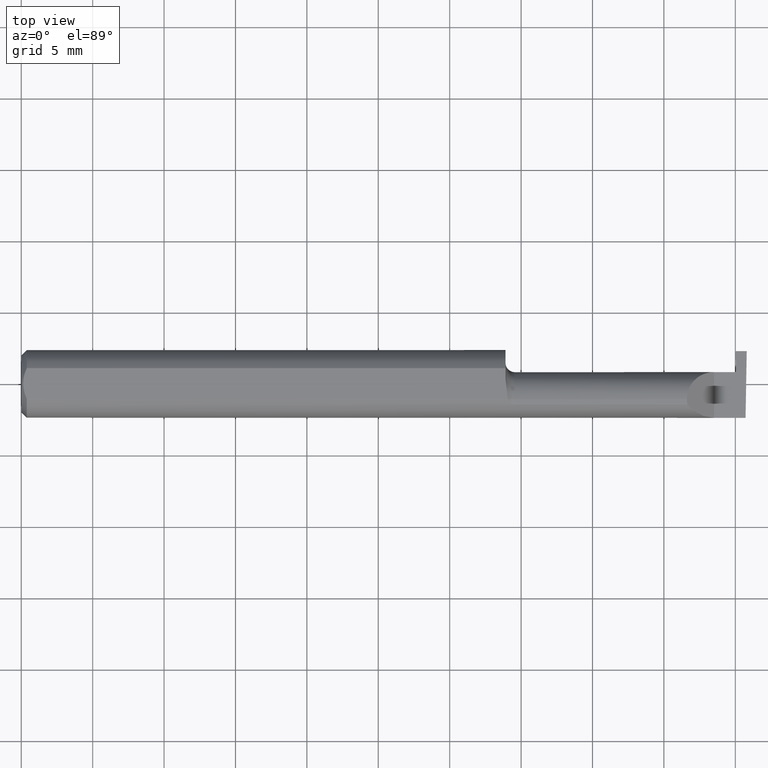
[diagram: clean part render]
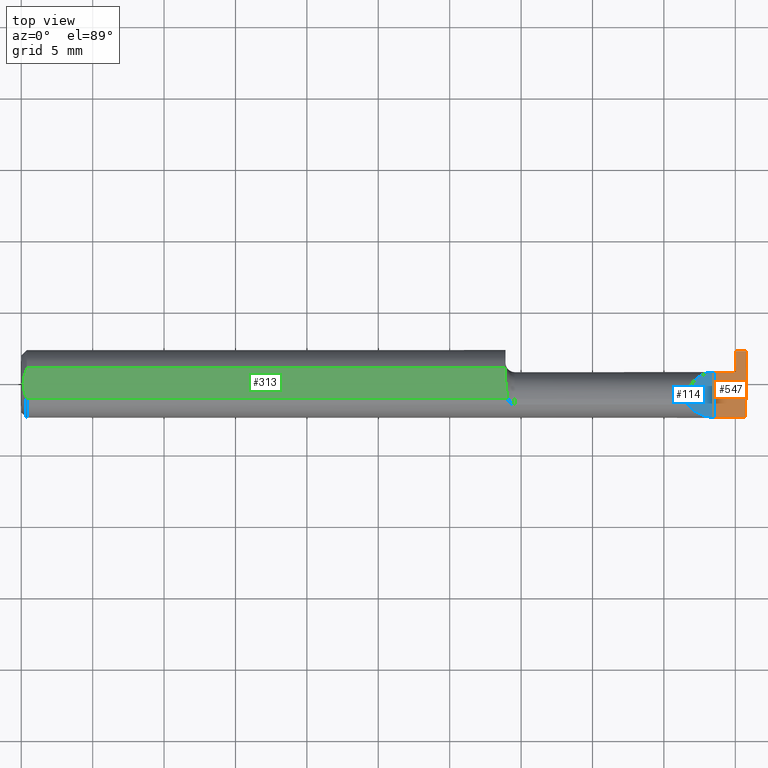
[diagram: same view with three faces highlighted in distinct colors, each labeled with its STEP entity id]
A machine part, top view with three faces highlighted in distinct colors.
Their STEP definitions:

[orange] entity #547 — the highlighted planar face has unit normal (-0, 0, -1).
#7 = EDGE_CURVE ( 'NONE', #507, #112, #250, .T. ) ;
#18 = VECTOR ( 'NONE', #140, 39.37007874015748143 ) ;
#37 = DIRECTION ( 'NONE',  ( 0.01742050049977865098, -0.9998482515673751125, -2.130797594925076716E-18 ) ) ;
#39 = VECTOR ( 'NONE', #649, 39.37007874015748143 ) ;
#65 = CARTESIAN_POINT ( 'NONE',  ( 1.996678706298551820, -0.09994204647866641866, 4.067411700506801675E-19 ) ) ;
#88 = VECTOR ( 'NONE', #717, 39.37007874015748854 ) ;
#96 = VECTOR ( 'NONE', #226, 39.37007874015748143 ) ;
#112 = VERTEX_POINT ( 'NONE', #553 ) ;
#134 = EDGE_CURVE ( 'NONE', #716, #653, #562, .T. ) ;
#140 = DIRECTION ( 'NONE',  ( -0.000000000000000000, 1.000000000000000000, -0.000000000000000000 ) ) ;
#155 = LINE ( 'NONE', #215, #417 ) ;
#172 = FACE_OUTER_BOUND ( 'NONE', #288, .T. ) ;
#173 = EDGE_CURVE ( 'NONE', #716, #539, #155, .T. ) ;
#181 = CARTESIAN_POINT ( 'NONE',  ( 1.970510542377208685, 0.03240000000000000518, 1.887975845471880136E-17 ) ) ;
#182 = LINE ( 'NONE', #704, #39 ) ;
#184 = CARTESIAN_POINT ( 'NONE',  ( 1.996789369178486595, -0.09359999999634724399, 1.727064904157919157E-17 ) ) ;
#205 = VECTOR ( 'NONE', #37, 39.37007874015748854 ) ;
#215 = CARTESIAN_POINT ( 'NONE',  ( 1.899999999999999911, 0.09040000000000000813, -3.918869757271545852E-19 ) ) ;
#221 = ORIENTED_EDGE ( 'NONE', *, *, #327, .F. ) ;
#226 = DIRECTION ( 'NONE',  ( -1.000000000000000000, -7.220189035068029059E-16, 1.224646799147358877E-16 ) ) ;
#230 = LINE ( 'NONE', #289, #96 ) ;
#250 = LINE ( 'NONE', #544, #579 ) ;
#254 = DIRECTION ( 'NONE',  ( -1.000000000000000000, -0.000000000000000000, -0.000000000000000000 ) ) ;
#256 = LINE ( 'NONE', #431, #18 ) ;
#288 = EDGE_LOOP ( 'NONE', ( #633, #769, #484, #418, #381, #221, #400 ) ) ;
#289 = CARTESIAN_POINT ( 'NONE',  ( 2.000000000000000000, 0.03240000000000002600, 1.170704816173023527E-32 ) ) ;
#296 = DIRECTION ( 'NONE',  ( -1.224646799147358877E-16, 0.000000000000000000, -1.000000000000000000 ) ) ;
#299 = CARTESIAN_POINT ( 'NONE',  ( 2.000000000000000000, -0.1000000000000000056, 0.000000000000000000 ) ) ;
#307 = LINE ( 'NONE', #65, #88 ) ;
#327 = EDGE_CURVE ( 'NONE', #698, #407, #182, .T. ) ;
#344 = CARTESIAN_POINT ( 'NONE',  ( 1.972825615918400111, -0.1004734632187760518, 3.327902248433222370E-18 ) ) ;
#369 = CARTESIAN_POINT ( 'NONE',  ( 2.000000000000000444, 0.09040000000000000813, -4.722041942173579765E-17 ) ) ;
#372 = CARTESIAN_POINT ( 'NONE',  ( 1.969499999999999806, 0.09040000000000000813, -3.918869757271545852E-19 ) ) ;
#379 = CARTESIAN_POINT ( 'NONE',  ( 1.910000000000000142, 0.03240000000000002600, 1.102182119232621301E-17 ) ) ;
#381 = ORIENTED_EDGE ( 'NONE', *, *, #451, .T. ) ;
#400 = ORIENTED_EDGE ( 'NONE', *, *, #774, .F. ) ;
#407 = VERTEX_POINT ( 'NONE', #581 ) ;
#417 = VECTOR ( 'NONE', #616, 39.37007874015748143 ) ;
#418 = ORIENTED_EDGE ( 'NONE', *, *, #134, .T. ) ;
#431 = CARTESIAN_POINT ( 'NONE',  ( 1.910000000000000142, -0.1000000000000000056, 1.102182119232621301E-17 ) ) ;
#451 = EDGE_CURVE ( 'NONE', #653, #407, #230, .T. ) ;
#484 = ORIENTED_EDGE ( 'NONE', *, *, #173, .F. ) ;
#507 = VERTEX_POINT ( 'NONE', #184 ) ;
#539 = VERTEX_POINT ( 'NONE', #369 ) ;
#544 = CARTESIAN_POINT ( 'NONE',  ( 2.999519565323743132E-32, -0.09359999999999998876, 2.449293598294717754E-16 ) ) ;
#547 = ADVANCED_FACE ( 'NONE', ( #172 ), #722, .F. ) ;
#553 = CARTESIAN_POINT ( 'NONE',  ( 1.910000000000000142, -0.09359999999999998876, 1.102182119232621301E-17 ) ) ;
#562 = LINE ( 'NONE', #344, #205 ) ;
#579 = VECTOR ( 'NONE', #254, 39.37007874015748143 ) ;
#581 = CARTESIAN_POINT ( 'NONE',  ( 1.969499999999999806, 0.03240000000000001212, 8.143897995945821622E-17 ) ) ;
#583 = EDGE_CURVE ( 'NONE', #507, #539, #307, .T. ) ;
#616 = DIRECTION ( 'NONE',  ( 1.000000000000000000, -0.000000000000000000, -0.000000000000000000 ) ) ;
#633 = ORIENTED_EDGE ( 'NONE', *, *, #7, .F. ) ;
#649 = DIRECTION ( 'NONE',  ( 1.000000000000000000, 0.000000000000000000, 0.000000000000000000 ) ) ;
#653 = VERTEX_POINT ( 'NONE', #181 ) ;
#655 = AXIS2_PLACEMENT_3D ( 'NONE', #299, #296, #775 ) ;
#698 = VERTEX_POINT ( 'NONE', #379 ) ;
#704 = CARTESIAN_POINT ( 'NONE',  ( 1.334999999999999742, 0.03240000000000000518, 8.143901214329938727E-17 ) ) ;
#716 = VERTEX_POINT ( 'NONE', #372 ) ;
#717 = DIRECTION ( 'NONE',  ( 0.01744642479411313840, 0.9998477995484629233, -2.135106780035502721E-18 ) ) ;
#722 = PLANE ( 'NONE',  #655 ) ;
#769 = ORIENTED_EDGE ( 'NONE', *, *, #583, .T. ) ;
#774 = EDGE_CURVE ( 'NONE', #112, #698, #256, .T. ) ;
#775 = DIRECTION ( 'NONE',  ( -1.000000000000000000, 0.000000000000000000, 1.224646799147358877E-16 ) ) ;

[blue] entity #114 — the highlighted planar face has unit normal (-0.7071, 0, -0.7071).
#18 = VECTOR ( 'NONE', #140, 39.37007874015748143 ) ;
#36 = CARTESIAN_POINT ( 'NONE',  ( 1.854690286057537829, -0.08092595952420826577, 0.05530971394246238237 ) ) ;
#43 = ORIENTED_EDGE ( 'NONE', *, *, #774, .T. ) ;
#48 =( BOUNDED_CURVE ( )  B_SPLINE_CURVE ( 3, ( #398, #626, #36, #683 ),
 .UNSPECIFIED., .F., .F. ) 
 B_SPLINE_CURVE_WITH_KNOTS ( ( 4, 4 ),
 ( 4.712388980384689674, 5.613420356061718408 ),
 .UNSPECIFIED. ) 
 CURVE ( )  GEOMETRIC_REPRESENTATION_ITEM ( )  RATIONAL_B_SPLINE_CURVE ( ( 1.000000000000000000, 0.9334817841311876530, 0.9334817841311876530, 1.000000000000000000 ) ) 
 REPRESENTATION_ITEM ( '' )  );
#53 = VERTEX_POINT ( 'NONE', #435 ) ;
#112 = VERTEX_POINT ( 'NONE', #553 ) ;
#114 = ADVANCED_FACE ( 'NONE', ( #262 ), #498, .F. ) ;
#128 =( BOUNDED_CURVE ( )  B_SPLINE_CURVE ( 3, ( #762, #331, #513, #757 ),
 .UNSPECIFIED., .F., .F. ) 
 B_SPLINE_CURVE_WITH_KNOTS ( ( 4, 4 ),
 ( 0.000000000000000000, 1.570796326794896558 ),
 .UNSPECIFIED. ) 
 CURVE ( )  GEOMETRIC_REPRESENTATION_ITEM ( )  RATIONAL_B_SPLINE_CURVE ( ( 1.000000000000000000, 0.8047378541243649375, 0.8047378541243649375, 1.000000000000000000 ) ) 
 REPRESENTATION_ITEM ( '' )  );
#140 = DIRECTION ( 'NONE',  ( -0.000000000000000000, 1.000000000000000000, -0.000000000000000000 ) ) ;
#199 = DIRECTION ( 'NONE',  ( -0.7071067811865460184, 0.000000000000000000, 0.7071067811865490160 ) ) ;
#256 = LINE ( 'NONE', #431, #18 ) ;
#260 =( BOUNDED_CURVE ( )  B_SPLINE_CURVE ( 3, ( #343, #461, #456, #468 ),
 .UNSPECIFIED., .F., .T. ) 
 B_SPLINE_CURVE_WITH_KNOTS ( ( 4, 4 ),
 ( 6.074922494366329140, 6.283185307179586232 ),
 .UNSPECIFIED. ) 
 CURVE ( )  GEOMETRIC_REPRESENTATION_ITEM ( )  RATIONAL_B_SPLINE_CURVE ( ( 1.000000000000000000, 0.9963888149483995926, 0.9963888149483995926, 1.000000000000000000 ) ) 
 REPRESENTATION_ITEM ( '' )  );
#262 = FACE_OUTER_BOUND ( 'NONE', #593, .T. ) ;
#305 = ORIENTED_EDGE ( 'NONE', *, *, #423, .F. ) ;
#331 = CARTESIAN_POINT ( 'NONE',  ( 1.835000000000000187, 0.001333982822017879596, 0.07499999999999998335 ) ) ;
#343 = CARTESIAN_POINT ( 'NONE',  ( 1.836620632051322310, -0.05810704225352113922, 0.07337936794867826185 ) ) ;
#379 = CARTESIAN_POINT ( 'NONE',  ( 1.910000000000000142, 0.03240000000000002600, 1.102182119232621301E-17 ) ) ;
#389 = EDGE_CURVE ( 'NONE', #574, #53, #260, .T. ) ;
#398 = CARTESIAN_POINT ( 'NONE',  ( 1.910000000000000142, -0.09359999999999998876, 1.102182119232621301E-17 ) ) ;
#423 = EDGE_CURVE ( 'NONE', #112, #574, #48, .T. ) ;
#431 = CARTESIAN_POINT ( 'NONE',  ( 1.910000000000000142, -0.1000000000000000056, 1.102182119232621301E-17 ) ) ;
#435 = CARTESIAN_POINT ( 'NONE',  ( 1.835000000000000409, -0.04259999999999998510, 0.07499999999999999722 ) ) ;
#448 = EDGE_CURVE ( 'NONE', #53, #698, #128, .T. ) ;
#456 = CARTESIAN_POINT ( 'NONE',  ( 1.835000000000000409, -0.04781600192481531147, 0.07499999999999999722 ) ) ;
#461 = CARTESIAN_POINT ( 'NONE',  ( 1.835542168554754827, -0.05300374992736064245, 0.07445783144524570352 ) ) ;
#468 = CARTESIAN_POINT ( 'NONE',  ( 1.835000000000000409, -0.04259999999999998510, 0.07499999999999999722 ) ) ;
#498 = PLANE ( 'NONE',  #602 ) ;
#513 = CARTESIAN_POINT ( 'NONE',  ( 1.866066017177982594, 0.03240000000000000518, 0.04393398282201787380 ) ) ;
#553 = CARTESIAN_POINT ( 'NONE',  ( 1.910000000000000142, -0.09359999999999998876, 1.102182119232621301E-17 ) ) ;
#574 = VERTEX_POINT ( 'NONE', #779 ) ;
#593 = EDGE_LOOP ( 'NONE', ( #701, #305, #43, #663 ) ) ;
#602 = AXIS2_PLACEMENT_3D ( 'NONE', #736, #724, #199 ) ;
#626 = CARTESIAN_POINT ( 'NONE',  ( 1.880893035518783396, -0.09359999999999998876, 0.02910696448121675300 ) ) ;
#663 = ORIENTED_EDGE ( 'NONE', *, *, #448, .F. ) ;
#683 = CARTESIAN_POINT ( 'NONE',  ( 1.836620632051322310, -0.05810704225352113922, 0.07337936794867826185 ) ) ;
#698 = VERTEX_POINT ( 'NONE', #379 ) ;
#701 = ORIENTED_EDGE ( 'NONE', *, *, #389, .F. ) ;
#724 = DIRECTION ( 'NONE',  ( -0.7071067811865490160, 0.000000000000000000, -0.7071067811865460184 ) ) ;
#736 = CARTESIAN_POINT ( 'NONE',  ( 1.910000000000000142, -0.1000000000000000056, 1.102182119232621301E-17 ) ) ;
#757 = CARTESIAN_POINT ( 'NONE',  ( 1.910000000000000142, 0.03240000000000002600, 1.102182119232621301E-17 ) ) ;
#762 = CARTESIAN_POINT ( 'NONE',  ( 1.835000000000000409, -0.04259999999999998510, 0.07499999999999999722 ) ) ;
#774 = EDGE_CURVE ( 'NONE', #112, #698, #256, .T. ) ;
#779 = CARTESIAN_POINT ( 'NONE',  ( 1.836620632051322310, -0.05810704225352113922, 0.07337936794867826185 ) ) ;

[green] entity #313 — the highlighted planar face has unit normal (0, -0, 1).
#33 = CARTESIAN_POINT ( 'NONE',  ( 0.01499999999999999944, -0.04209513035969836975, 0.08359999999999999376 ) ) ;
#56 = DIRECTION ( 'NONE',  ( 1.000000000000000000, 0.000000000000000000, -0.000000000000000000 ) ) ;
#60 = EDGE_CURVE ( 'NONE', #378, #429, #760, .T. ) ;
#69 = VECTOR ( 'NONE', #111, 39.37007874015748143 ) ;
#95 = CARTESIAN_POINT ( 'NONE',  ( 0.004999999999999986226, 1.025183015402604432E-17, 0.08359999999999999376 ) ) ;
#100 = ORIENTED_EDGE ( 'NONE', *, *, #223, .T. ) ;
#105 = CARTESIAN_POINT ( 'NONE',  ( 0.009492654797564226143, 0.02859466010166631864, 0.08360000000000000764 ) ) ;
#111 = DIRECTION ( 'NONE',  ( -1.000000000000000000, -0.000000000000000000, -0.000000000000000000 ) ) ;
#131 = CARTESIAN_POINT ( 'NONE',  ( 1.334999999999999742, 0.003280657920457268322, 0.08359999999999999376 ) ) ;
#143 = CARTESIAN_POINT ( 'NONE',  ( 1.341082007218902916, -0.03301619840524099708, 0.08359999999999997988 ) ) ;
#145 = ORIENTED_EDGE ( 'NONE', *, *, #308, .T. ) ;
#165 = VECTOR ( 'NONE', #767, 39.37007874015748143 ) ;
#170 = PLANE ( 'NONE',  #576 ) ;
#206 = CARTESIAN_POINT ( 'NONE',  ( 0.01203648650249646186, 0.03550565407121129141, 0.08359999999999997988 ) ) ;
#210 = CARTESIAN_POINT ( 'NONE',  ( 0.004999999999999986226, 1.025183015402604432E-17, 0.08359999999999999376 ) ) ;
#213 = DIRECTION ( 'NONE',  ( 1.000000000000000000, 0.000000000000000000, 0.000000000000000000 ) ) ;
#214 = B_SPLINE_CURVE_WITH_KNOTS ( 'NONE', 3,
 ( #469, #642, #416, #592, #768, #405 ),
 .UNSPECIFIED., .F., .F.,
 ( 4, 2, 4 ),
 ( 0.002614097267282502243, 0.003163218599391118095, 0.003712339931499734381 ),
 .UNSPECIFIED. ) ;
#223 = EDGE_CURVE ( 'NONE', #515, #236, #730, .T. ) ;
#236 = VERTEX_POINT ( 'NONE', #95 ) ;
#239 = DIRECTION ( 'NONE',  ( 0.000000000000000000, -0.000000000000000000, 1.000000000000000000 ) ) ;
#269 = ORIENTED_EDGE ( 'NONE', *, *, #60, .T. ) ;
#279 = CARTESIAN_POINT ( 'NONE',  ( 1.334999999999999520, 0.01227294415283364248, 0.08359999999999999376 ) ) ;
#308 = EDGE_CURVE ( 'NONE', #236, #471, #214, .T. ) ;
#313 = ADVANCED_FACE ( 'NONE', ( #482 ), #170, .T. ) ;
#323 = ORIENTED_EDGE ( 'NONE', *, *, #428, .T. ) ;
#325 = LINE ( 'NONE', #636, #69 ) ;
#337 = CARTESIAN_POINT ( 'NONE',  ( 1.341129652885479029, -0.04209513035970091632, 0.08359999999999999376 ) ) ;
#348 = CARTESIAN_POINT ( 'NONE',  ( 1.334999999999999742, -0.09360000000000003040, 0.08359999999999999376 ) ) ;
#378 = VERTEX_POINT ( 'NONE', #337 ) ;
#388 = VERTEX_POINT ( 'NONE', #526 ) ;
#393 = CARTESIAN_POINT ( 'NONE',  ( 0.000000000000000000, -0.04209513035969836975, 0.08359999999999999376 ) ) ;
#405 = CARTESIAN_POINT ( 'NONE',  ( 0.01499999999999999944, -0.04209513035969836975, 0.08359999999999999376 ) ) ;
#416 = CARTESIAN_POINT ( 'NONE',  ( 0.005975039161239316735, -0.01453776427033148973, 0.08360000000000000764 ) ) ;
#428 = EDGE_CURVE ( 'NONE', #471, #378, #521, .T. ) ;
#429 = VERTEX_POINT ( 'NONE', #279 ) ;
#432 = CARTESIAN_POINT ( 'NONE',  ( 1.341129652885479029, -0.04209513035970091632, 0.08359999999999999376 ) ) ;
#446 = ORIENTED_EDGE ( 'NONE', *, *, #494, .T. ) ;
#453 = CARTESIAN_POINT ( 'NONE',  ( 0.004999999999999977553, 0.007308422719211852582, 0.08359999999999999376 ) ) ;
#469 = CARTESIAN_POINT ( 'NONE',  ( 0.004999999999999986226, 1.025183015402604432E-17, 0.08359999999999999376 ) ) ;
#471 = VERTEX_POINT ( 'NONE', #33 ) ;
#482 = FACE_OUTER_BOUND ( 'NONE', #680, .T. ) ;
#486 = EDGE_CURVE ( 'NONE', #388, #515, #325, .T. ) ;
#489 = CARTESIAN_POINT ( 'NONE',  ( 0.01499999999999999598, 0.04209513035969836975, 0.08359999999999999376 ) ) ;
#492 = CARTESIAN_POINT ( 'NONE',  ( 1.336463898467977085, -0.005727447913487261622, 0.08359999999999997988 ) ) ;
#494 = EDGE_CURVE ( 'NONE', #429, #388, #564, .T. ) ;
#515 = VERTEX_POINT ( 'NONE', #489 ) ;
#521 = LINE ( 'NONE', #393, #729 ) ;
#526 = CARTESIAN_POINT ( 'NONE',  ( 1.334999999999999742, 0.04209513035969834893, 0.08359999999999999376 ) ) ;
#557 = CARTESIAN_POINT ( 'NONE',  ( 1.334999999999999520, 0.01227294415283364248, 0.08359999999999999376 ) ) ;
#564 = LINE ( 'NONE', #348, #165 ) ;
#576 = AXIS2_PLACEMENT_3D ( 'NONE', #715, #239, #56 ) ;
#592 = CARTESIAN_POINT ( 'NONE',  ( 0.009539353699420717939, -0.02875682547511373283, 0.08359999999999997988 ) ) ;
#612 = CARTESIAN_POINT ( 'NONE',  ( 1.339570820222979686, -0.02392027542784307473, 0.08360000000000000764 ) ) ;
#632 = CARTESIAN_POINT ( 'NONE',  ( 0.005981829149300633627, 0.01454044632356571096, 0.08359999999999997988 ) ) ;
#636 = CARTESIAN_POINT ( 'NONE',  ( 0.000000000000000000, 0.04209513035969836975, 0.08359999999999999376 ) ) ;
#642 = CARTESIAN_POINT ( 'NONE',  ( 0.004999999999999974083, -0.007328888879231052096, 0.08359999999999997988 ) ) ;
#680 = EDGE_LOOP ( 'NONE', ( #323, #269, #446, #753, #100, #145 ) ) ;
#715 = CARTESIAN_POINT ( 'NONE',  ( 2.000000000000000000, -0.09360000000000003040, 0.08359999999999999376 ) ) ;
#729 = VECTOR ( 'NONE', #213, 39.37007874015748143 ) ;
#730 = B_SPLINE_CURVE_WITH_KNOTS ( 'NONE', 3,
 ( #749, #206, #105, #632, #453, #210 ),
 .UNSPECIFIED., .F., .F.,
 ( 4, 2, 4 ),
 ( 0.001518921481343300838, 0.002066509374312901649, 0.002614097267282502243 ),
 .UNSPECIFIED. ) ;
#749 = CARTESIAN_POINT ( 'NONE',  ( 0.01499999999999999598, 0.04209513035969836975, 0.08359999999999999376 ) ) ;
#753 = ORIENTED_EDGE ( 'NONE', *, *, #486, .T. ) ;
#760 = B_SPLINE_CURVE_WITH_KNOTS ( 'NONE', 3,
 ( #432, #143, #612, #492, #131, #557 ),
 .UNSPECIFIED., .F., .F.,
 ( 4, 2, 4 ),
 ( 0.009672910729349577102, 0.01035804079918434435, 0.01104317086901911160 ),
 .UNSPECIFIED. ) ;
#767 = DIRECTION ( 'NONE',  ( -0.000000000000000000, 1.000000000000000000, 0.000000000000000000 ) ) ;
#768 = CARTESIAN_POINT ( 'NONE',  ( 0.01206089165507020187, -0.03555991978469316694, 0.08359999999999999376 ) ) ;